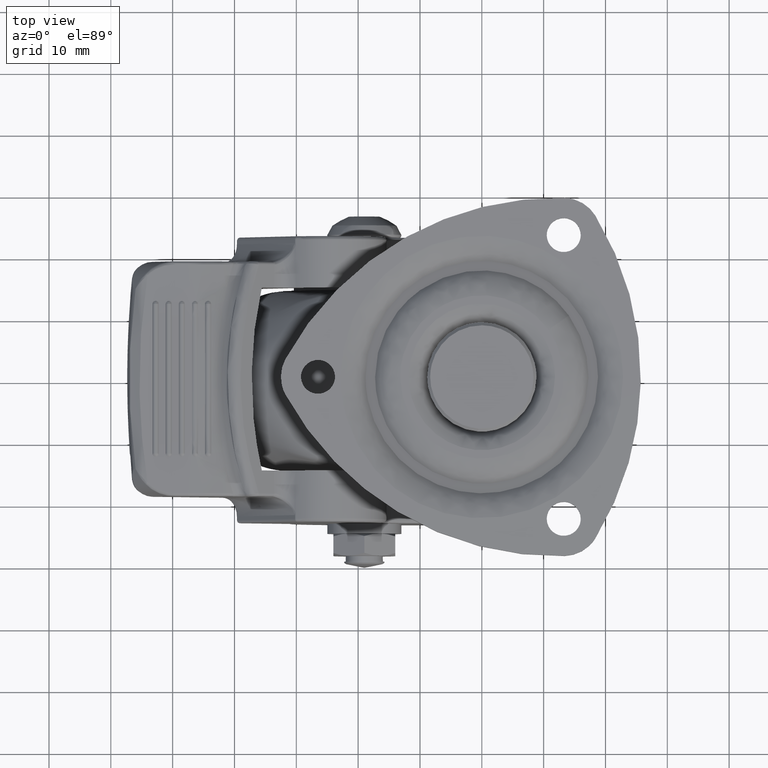
[diagram: clean part render]
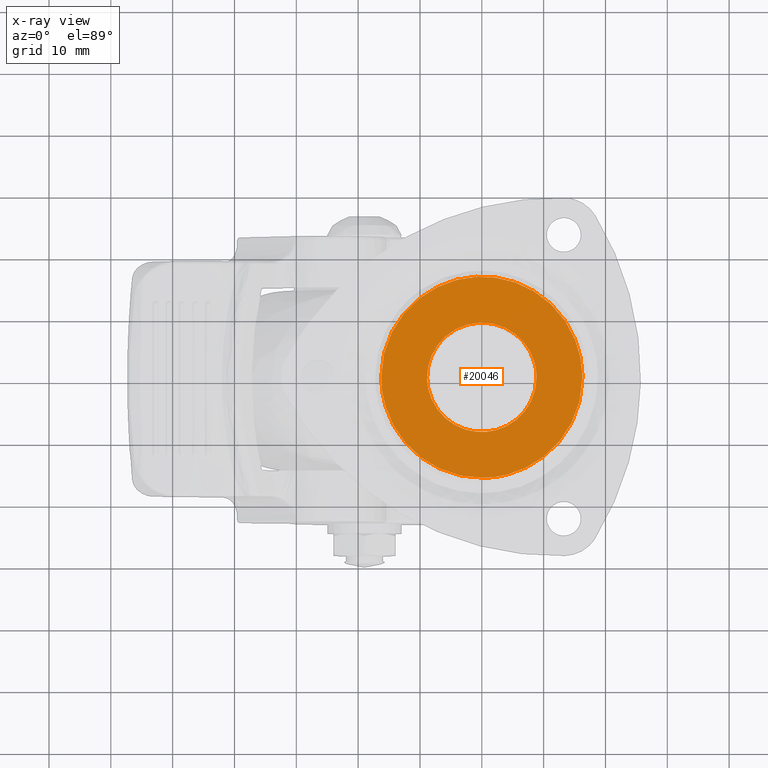
[diagram: x-ray — body ghosted, one internal face saturated and labeled with its STEP entity id]
A machine part, top view, then the same camera in x-ray: the body is ghosted and one INTERNAL B-rep face — a face not visible from any outside direction — is saturated and labeled: STEP entity #20046.
In plain terms, the highlighted face is a freeform B-spline surface patch.
Its self-contained STEP definition (entity closure, byte-faithful):
#15794=CARTESIAN_POINT('',(-7.232519616322580,5.100309794464311,-4.368775000000000));
#15795=VERTEX_POINT('',#15794);
#15801=CARTESIAN_POINT('',(-8.850000000000000,0.0,-4.368775000000000));
#15802=VERTEX_POINT('',#15801);
#15803=CARTESIAN_POINT('',(-8.850000000000000,0.0,-4.368775000000000));
#15804=CARTESIAN_POINT('',(-8.849999999999998,2.806633327860033,-4.368775000000000));
#15805=CARTESIAN_POINT('',(-7.232519616322580,5.100309794464311,-4.368775000000000));
#15813=(BOUNDED_CURVE()B_SPLINE_CURVE(2,(#15803,#15804,#15805),.UNSPECIFIED.,.F.,.U.)B_SPLINE_CURVE_WITH_KNOTS((3,3),(0.0,0.099105139686591),.UNSPECIFIED.)CURVE()GEOMETRIC_REPRESENTATION_ITEM()RATIONAL_B_SPLINE_CURVE((1.0,0.883891106544950,0.859838117927646))REPRESENTATION_ITEM(''));
#15814=EDGE_CURVE('',#15802,#15795,#15813,.T.);
#15816=CARTESIAN_POINT('',(8.850000000000000,0.0,-4.368775000000000));
#15817=VERTEX_POINT('',#15816);
#15818=CARTESIAN_POINT('',(8.850000000000000,0.0,-4.368775000000000));
#15819=CARTESIAN_POINT('',(8.850000000000000,-8.850000000000000,-4.368775000000000));
#15820=CARTESIAN_POINT('',(0.0,-8.850000000000000,-4.368775000000000));
#15821=CARTESIAN_POINT('',(-8.850000000000000,-8.850000000000000,-4.368775000000000));
#15822=CARTESIAN_POINT('',(-8.850000000000000,0.0,-4.368775000000000));
#15830=(BOUNDED_CURVE()B_SPLINE_CURVE(2,(#15818,#15819,#15820,#15821,#15822),.UNSPECIFIED.,.F.,.U.)B_SPLINE_CURVE_WITH_KNOTS((3,2,3),(0.500000000000000,0.750000000000000,1.0),.UNSPECIFIED.)CURVE()GEOMETRIC_REPRESENTATION_ITEM()RATIONAL_B_SPLINE_CURVE((1.0,0.707106781186547,1.0,0.707106781186547,1.0))REPRESENTATION_ITEM(''));
#15831=EDGE_CURVE('',#15817,#15802,#15830,.T.);
#15833=CARTESIAN_POINT('',(-2.365059628329701,8.528129510886016,-4.368775000000000));
#15834=VERTEX_POINT('',#15833);
#15835=CARTESIAN_POINT('',(-2.365059628329702,8.528129510886016,-4.368775000000000));
#15836=CARTESIAN_POINT('',(-1.204432139716036,8.850000000000000,-4.368775000000000));
#15837=CARTESIAN_POINT('',(0.0,8.850000000000000,-4.368775000000000));
#15838=CARTESIAN_POINT('',(8.850000000000000,8.850000000000000,-4.368775000000000));
#15839=CARTESIAN_POINT('',(8.850000000000000,0.0,-4.368775000000000));
#15847=(BOUNDED_CURVE()B_SPLINE_CURVE(2,(#15835,#15836,#15837,#15838,#15839),.UNSPECIFIED.,.F.,.U.)B_SPLINE_CURVE_WITH_KNOTS((3,2,3),(0.204451173364607,0.250000000000000,0.500000000000000),.UNSPECIFIED.)CURVE()GEOMETRIC_REPRESENTATION_ITEM()RATIONAL_B_SPLINE_CURVE((0.912717717217297,0.946636230214336,1.0,0.707106781186547,1.0))REPRESENTATION_ITEM(''));
#15848=EDGE_CURVE('',#15834,#15817,#15847,.T.);
#15950=CARTESIAN_POINT('',(-7.232519616322580,5.100309794464311,-4.368775000000000));
#15951=CARTESIAN_POINT('',(-5.410920813538620,7.683437446399837,-4.368775000000000));
#15952=CARTESIAN_POINT('',(-2.365059628329701,8.528129510886016,-4.368774999999999));
#15960=(BOUNDED_CURVE()B_SPLINE_CURVE(2,(#15950,#15951,#15952),.UNSPECIFIED.,.F.,.U.)B_SPLINE_CURVE_WITH_KNOTS((3,3),(0.099105139686591,0.204451173364607),.UNSPECIFIED.)CURVE()GEOMETRIC_REPRESENTATION_ITEM()RATIONAL_B_SPLINE_CURVE((0.859838117927646,0.834270453556771,0.912717717217297))REPRESENTATION_ITEM(''));
#15961=EDGE_CURVE('',#15795,#15834,#15960,.T.);
#19228=CARTESIAN_POINT('',(0.408987509473050,-16.269669477122321,-4.368775000010111));
#19229=VERTEX_POINT('',#19228);
#19243=CARTESIAN_POINT('',(-16.274809236281651,0.0,-4.368775000000000));
#19244=VERTEX_POINT('',#19243);
#19245=CARTESIAN_POINT('',(0.408987509473050,-16.269669477122317,-4.368775000010111));
#19246=CARTESIAN_POINT('',(0.204526050517154,-16.274809236281648,-4.368775000000000));
#19247=CARTESIAN_POINT('',(0.0,-16.274809236281651,-4.368775000000000));
#19248=CARTESIAN_POINT('',(-16.274809236281648,-16.274809236281648,-4.368775000000000));
#19249=CARTESIAN_POINT('',(-16.274809236281651,0.0,-4.368775000000000));
#19257=(BOUNDED_CURVE()B_SPLINE_CURVE(2,(#19245,#19246,#19247,#19248,#19249),.UNSPECIFIED.,.F.,.U.)B_SPLINE_CURVE_WITH_KNOTS((3,2,3),(0.745579891768885,0.750000000000000,1.0),.UNSPECIFIED.)CURVE()GEOMETRIC_REPRESENTATION_ITEM()RATIONAL_B_SPLINE_CURVE((0.989826157679490,0.994821521090739,1.0,0.707106781186547,1.0))REPRESENTATION_ITEM(''));
#19258=EDGE_CURVE('',#19229,#19244,#19257,.T.);
#19260=CARTESIAN_POINT('',(16.269669477122161,0.408987509472314,-4.368775000009941));
#19261=VERTEX_POINT('',#19260);
#19262=CARTESIAN_POINT('',(-16.274809236281651,0.0,-4.368775000000000));
#19263=CARTESIAN_POINT('',(-16.274809236281648,16.274809236281648,-4.368775000000000));
#19264=CARTESIAN_POINT('',(0.0,16.274809236281651,-4.368775000000000));
#19265=CARTESIAN_POINT('',(15.870833906200044,16.274809236281651,-4.368775000000000));
#19266=CARTESIAN_POINT('',(16.269669477122157,0.408987509472314,-4.368775000009942));
#19274=(BOUNDED_CURVE()B_SPLINE_CURVE(2,(#19262,#19263,#19264,#19265,#19266),.UNSPECIFIED.,.F.,.U.)B_SPLINE_CURVE_WITH_KNOTS((3,2,3),(0.0,0.250000000000000,0.495579891768900),.UNSPECIFIED.)CURVE()GEOMETRIC_REPRESENTATION_ITEM()RATIONAL_B_SPLINE_CURVE((1.0,0.707106781186547,1.0,0.712285260095790,0.989826157679526))REPRESENTATION_ITEM(''));
#19275=EDGE_CURVE('',#19244,#19261,#19274,.T.);
#19316=CARTESIAN_POINT('',(16.274809236281651,0.0,-4.368775000000000));
#19317=VERTEX_POINT('',#19316);
#19318=CARTESIAN_POINT('',(16.269669477122157,0.408987509472314,-4.368775000009942));
#19319=CARTESIAN_POINT('',(16.274809236281651,0.204526050516423,-4.368775000000000));
#19320=CARTESIAN_POINT('',(16.274809236281651,0.0,-4.368775000000000));
#19328=(BOUNDED_CURVE()B_SPLINE_CURVE(2,(#19318,#19319,#19320),.UNSPECIFIED.,.F.,.U.)B_SPLINE_CURVE_WITH_KNOTS((3,3),(0.495579891768900,0.500000000000000),.UNSPECIFIED.)CURVE()GEOMETRIC_REPRESENTATION_ITEM()RATIONAL_B_SPLINE_CURVE((0.989826157679526,0.994821521090758,1.0))REPRESENTATION_ITEM(''));
#19329=EDGE_CURVE('',#19261,#19317,#19328,.T.);
#19331=CARTESIAN_POINT('',(16.274809236281651,0.0,-4.368775000000000));
#19332=CARTESIAN_POINT('',(16.274809236281651,-15.870833906198705,-4.368775000000000));
#19333=CARTESIAN_POINT('',(0.408987509473050,-16.269669477122317,-4.368775000010111));
#19341=(BOUNDED_CURVE()B_SPLINE_CURVE(2,(#19331,#19332,#19333),.UNSPECIFIED.,.F.,.U.)B_SPLINE_CURVE_WITH_KNOTS((3,3),(0.500000000000000,0.745579891768886),.UNSPECIFIED.)CURVE()GEOMETRIC_REPRESENTATION_ITEM()RATIONAL_B_SPLINE_CURVE((1.0,0.712285260095807,0.989826157679492))REPRESENTATION_ITEM(''));
#19342=EDGE_CURVE('',#19317,#19229,#19341,.T.);
#20029=CARTESIAN_POINT('',(17.900662310346171,-17.895201064047200,-4.368774999999999));
#20030=CARTESIAN_POINT('',(-17.900663474411239,-17.895201064047200,-4.368774999999999));
#20031=CARTESIAN_POINT('',(17.900662310346171,17.899058379611279,-4.368775000000000));
#20032=CARTESIAN_POINT('',(-17.900663474411239,17.899058379611279,-4.368775000000000));
#20033=B_SPLINE_SURFACE_WITH_KNOTS('',1,1,((#20029,#20031),(#20030,#20032)),.UNSPECIFIED.,.F.,.F.,.U.,(2,2),(2,2),(0.0,35.801325784757417),(0.0,35.794259443658483),.UNSPECIFIED.);
#20034=ORIENTED_EDGE('',*,*,#19258,.F.);
#20035=ORIENTED_EDGE('',*,*,#19342,.F.);
#20036=ORIENTED_EDGE('',*,*,#19329,.F.);
#20037=ORIENTED_EDGE('',*,*,#19275,.F.);
#20038=EDGE_LOOP('',(#20034,#20035,#20036,#20037));
#20039=FACE_OUTER_BOUND('',#20038,.T.);
#20040=ORIENTED_EDGE('',*,*,#15831,.T.);
#20041=ORIENTED_EDGE('',*,*,#15814,.T.);
#20042=ORIENTED_EDGE('',*,*,#15961,.T.);
#20043=ORIENTED_EDGE('',*,*,#15848,.T.);
#20044=EDGE_LOOP('',(#20040,#20041,#20042,#20043));
#20045=FACE_BOUND('',#20044,.T.);
#20046=ADVANCED_FACE('',(#20039,#20045),#20033,.F.);